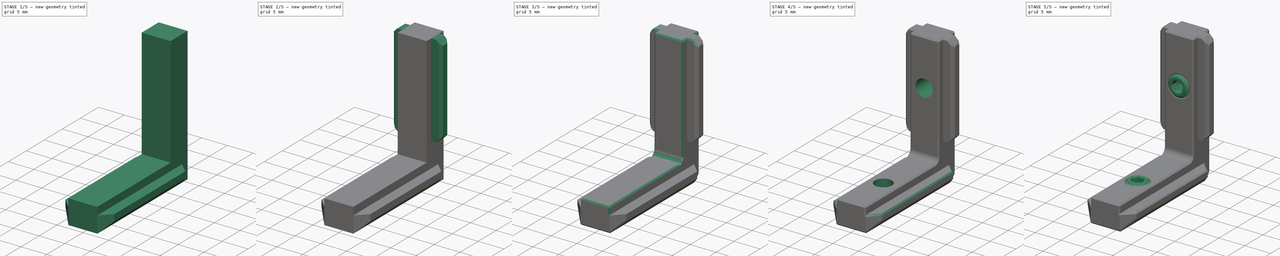
[diagram: build sequence overview — one tinted view per stage of 5, left to right]
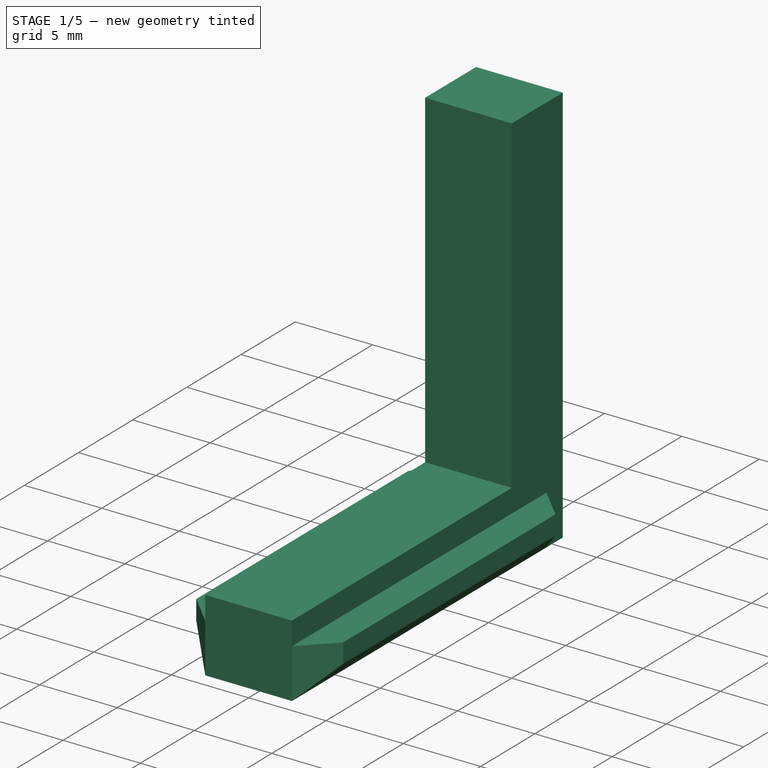
[diagram: stage 1 of 5 — iso view after this stage's code; geometry added in this stage tinted green]
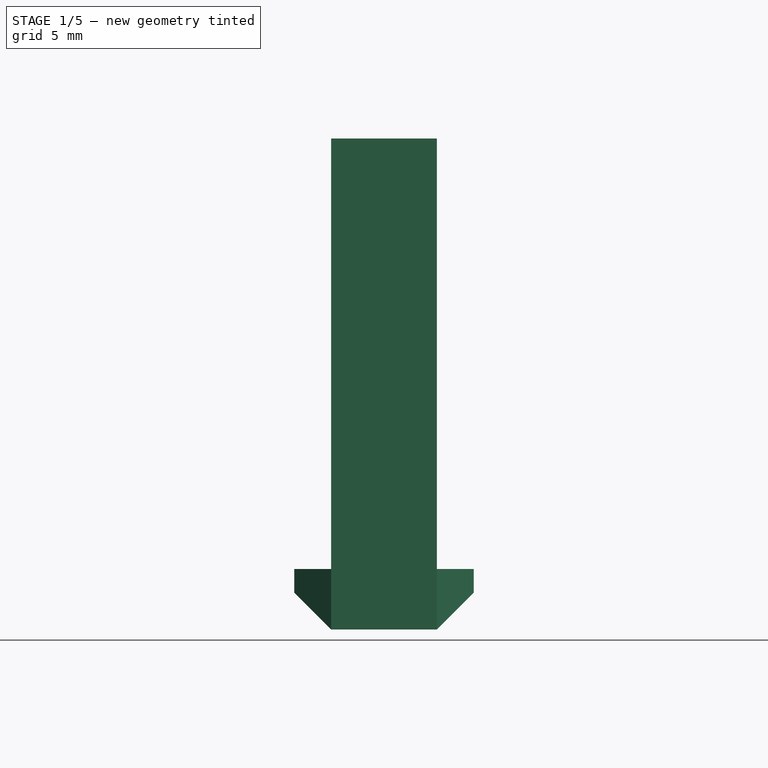
[diagram: stage 1 of 5 — front view after this stage's code; geometry added in this stage tinted green]
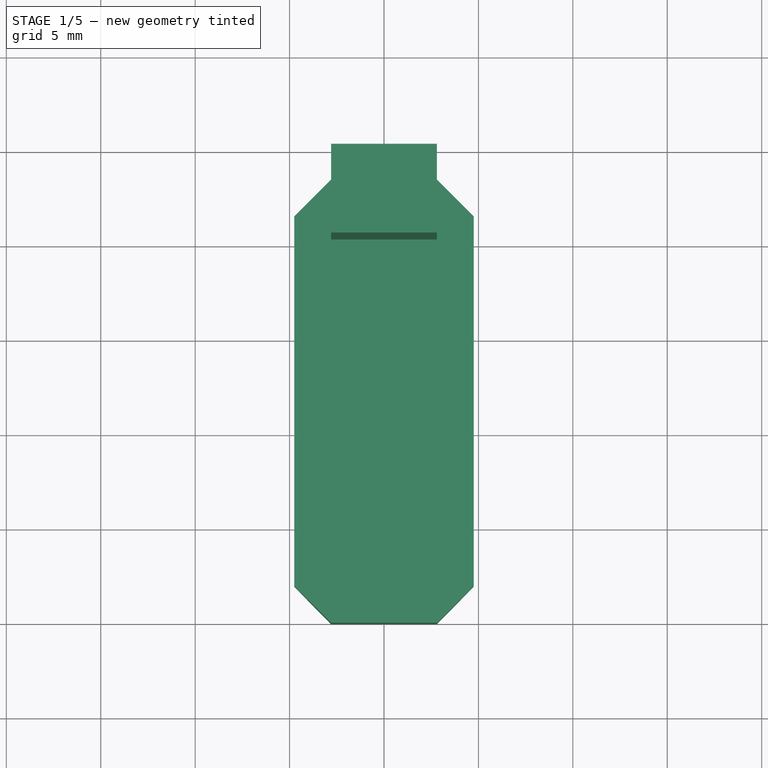
[diagram: stage 1 of 5 — top view after this stage's code; geometry added in this stage tinted green]
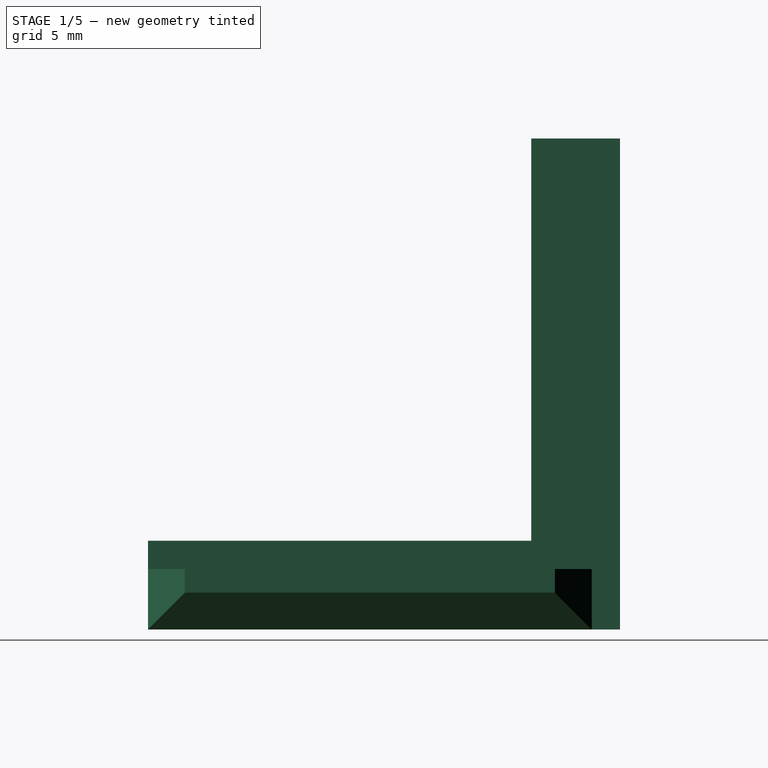
[diagram: stage 1 of 5 — right view after this stage's code; geometry added in this stage tinted green]
FCSTD DOCUMENT  (FreeCAD 0.21R33668 +7 (Git))
Label: 2020 Extrusion Inside Corner Bracket
License: All rights reserved
LicenseURL: http://en.wikipedia.org/wiki/All_rights_reserved
objects: Sketcher::SketchObject×6, PartDesign::Chamfer×6, PartDesign::Pad×3, PartDesign::Hole×2, Part::FeaturePython×2, PartDesign::Pocket×1, PartDesign::Fillet×1, PartDesign::Body×1
note: 35 computed .brp shape members not serialized (recipe doc carries the construction recipe); baked Part::Feature solids carry a one-line shape summary decoded from their .brp

FEATURE [Sketcher::SketchObject] Sketch
  FullyConstrained = true
  MapMode = 5
  Placement = pos=(0,0,0) rot=(1,0,0;1.5708rad)
  Support = -> [XZ_Plane]
  sketch-geometry (10):
    g0: LineSegment StartX=-2.8 StartY=-0.3 StartZ=0 EndX=2.8 EndY=-0.3 EndZ=0
    g1: LineSegment StartX=2.8 StartY=-0.3 StartZ=0 EndX=2.8 EndY=-1.8 EndZ=0
    g2: LineSegment StartX=2.8 StartY=-1.8 StartZ=0 EndX=4.75 EndY=-1.8 EndZ=0
    g3: LineSegment StartX=4.75 StartY=-1.8 StartZ=0 EndX=4.75 EndY=-3.05 EndZ=0
    g4: LineSegment StartX=4.75 StartY=-3.05 StartZ=0 EndX=2.8 EndY=-5 EndZ=0
    g5: LineSegment StartX=2.8 StartY=-5 StartZ=0 EndX=-2.8 EndY=-5 EndZ=0
    g6: LineSegment StartX=-2.8 StartY=-5 StartZ=0 EndX=-4.75 EndY=-3.05 EndZ=0
    g7: LineSegment StartX=-4.75 StartY=-3.05 StartZ=0 EndX=-4.75 EndY=-1.8 EndZ=0
    g8: LineSegment StartX=-4.75 StartY=-1.8 StartZ=0 EndX=-2.8 EndY=-1.8 EndZ=0
    g9: LineSegment StartX=-2.8 StartY=-1.8 StartZ=0 EndX=-2.8 EndY=-0.3 EndZ=0
  constraints (28):
    c: Coincident(g0,g1)
    c: Vertical(g1)
    c: Coincident(g1,g2)
    c: Horizontal(g2)
    c: Coincident(g2,g3)
    c: Coincident(g3,g4)
    c: Coincident(g4,g5)
    c: Coincident(g5,g6)
    c: Coincident(g6,g7)
    c: Vertical(g7)
    c: Coincident(g7,g8)
    c: Horizontal(g8)
    c: Coincident(g8,g9)
    c: Coincident(g9,g0)
    c: Vertical(g9)
    c: Symmetric(g0,g0,g-2)
    c: DistanceX(g0,g0) = 5.6
    c: Equal(g8,g2)
    c: Equal(g1,g9)
    c: Equal(g6,g4)
    c: Equal(g3,g7)
    c: Symmetric(g5,g4,g-2)
    c: DistanceX(g7,g2) = 9.5
    c: DistanceY(g4,g0) = 4.7
    c: Perpendicular(g4,g6)
    c: DistanceY(g1,g-1) = 1.8
    c: DistanceY(g2,g0) = 1.5
    c: Vertical(g8,g5)
FEATURE [PartDesign::Pad] Pad
  Direction = (0,-1,2e-16)
  Length = 25
  Length2 = 10
  Placement = pos=(0,0,0) rot=(1,0,0;1.5708rad)
  Profile = -> Sketch
  ReferenceAxis = -> Sketch [N_Axis]
  Type = 0
FEATURE [Sketcher::SketchObject] Sketch001
  ExternalGeometry = -> [Pad]
  FullyConstrained = true
  MapMode = 5
  Placement = pos=(0,-1e-16,-0.3) rot=(0,0,1;3.14159rad)
  Support = -> [Pad]
  sketch-geometry (4):
    g0: LineSegment StartX=-2.8 StartY=0 StartZ=0 EndX=2.8 EndY=0 EndZ=0
    g1: LineSegment StartX=2.8 StartY=0 StartZ=0 EndX=2.8 EndY=4.7 EndZ=0
    g2: LineSegment StartX=2.8 StartY=4.7 StartZ=0 EndX=-2.8 EndY=4.7 EndZ=0
    g3: LineSegment StartX=-2.8 StartY=4.7 StartZ=0 EndX=-2.8 EndY=0 EndZ=0
  constraints (11):
    c: Coincident(g0,g1)
    c: Coincident(g1,g2)
    c: Coincident(g2,g3)
    c: Coincident(g3,g0)
    c: Horizontal(g0)
    c: Horizontal(g2)
    c: Vertical(g1)
    c: Vertical(g3)
    c: Coincident(g0,g-3)
    c: PointOnObject(g1,g-4)
    c: DistanceY(g3,g3) = 4.7
FEATURE [PartDesign::Pad] Pad001
  BaseFeature = -> Pad
  Direction = (0,2e-16,1)
  Length = 21.3
  Length2 = 10
  Placement = pos=(0,0,0) rot=(1,0,0;1.5708rad)
  Profile = -> Sketch001
  ReferenceAxis = -> Sketch001 [N_Axis]
  Refine = true
  Type = 0
FEATURE [Sketcher::SketchObject] Sketch002
  ExternalGeometry = -> [Pad001]
  FullyConstrained = true
  MapMode = 5
  Placement = pos=(0,-4e-16,-1.8) rot=(0,0,1;3.14159rad)
  Support = -> [Pad001]
  sketch-geometry (14):
    g0: LineSegment StartX=-2.8 StartY=25 StartZ=0 EndX=-4.75 EndY=25 EndZ=0
    g1: LineSegment StartX=-4.75 StartY=25 StartZ=0 EndX=-4.75 EndY=23.05 EndZ=0
    g2: LineSegment StartX=-4.75 StartY=23.05 StartZ=0 EndX=-2.8 EndY=25 EndZ=0
    g3: LineSegment StartX=2.8 StartY=25 StartZ=0 EndX=4.75 EndY=25 EndZ=0
    g4: LineSegment StartX=4.75 StartY=25 StartZ=0 EndX=4.75 EndY=23.05 EndZ=0
    g5: LineSegment StartX=4.75 StartY=23.05 StartZ=0 EndX=2.8 EndY=25 EndZ=0
    g6: LineSegment StartX=2.8 StartY=1.5 StartZ=0 EndX=4.75 EndY=3.45 EndZ=0
    g7: LineSegment StartX=4.75 StartY=3.45 StartZ=0 EndX=4.75 EndY=0 EndZ=0
    g8: LineSegment StartX=4.75 StartY=0 StartZ=0 EndX=2.8 EndY=0 EndZ=0
    g9: LineSegment StartX=2.8 StartY=0 StartZ=0 EndX=2.8 EndY=1.5 EndZ=0
    g10: LineSegment StartX=-2.8 StartY=1.5 StartZ=0 EndX=-4.75 EndY=3.45 EndZ=0
    g11: LineSegment StartX=-4.75 StartY=3.45 StartZ=0 EndX=-4.75 EndY=0 EndZ=0
    g12: LineSegment StartX=-4.75 StartY=0 StartZ=0 EndX=-2.8 EndY=0 EndZ=0
    g13: LineSegment StartX=-2.8 StartY=0 StartZ=0 EndX=-2.8 EndY=1.5 EndZ=0
  constraints (34):
    c: Coincident(g-6,g0)
    c: Coincident(g0,g1)
    c: Coincident(g1,g2)
    c: Coincident(g2,g0)
    c: Coincident(g-5,g3)
    c: Coincident(g3,g4)
    c: PointOnObject(g4,g-4)
    c: Coincident(g4,g5)
    c: Coincident(g5,g3)
    c: PointOnObject(g1,g-3)
    c: Coincident(g0,g-3)
    c: Coincident(g3,g-4)
    c: Equal(g3,g4)
    c: Equal(g4,g1)
    c: PointOnObject(g6,g-5)
    c: PointOnObject(g6,g-4)
    c: Coincident(g6,g7)
    c: Coincident(g7,g8)
    c: Coincident(g8,g9)
    c: Coincident(g9,g6)
    c: PointOnObject(g10,g-6)
    c: PointOnObject(g10,g-3)
    c: Coincident(g10,g11)
    c: Coincident(g11,g12)
    c: Coincident(g12,g13)
    c: Coincident(g13,g10)
    c: Coincident(g12,g-6)
    c: Coincident(g-3,g11)
    c: Coincident(g7,g-4)
    c: Coincident(g8,g-5)
    c: Equal(g9,g13)
    c: Equal(g11,g7)
    c: Equal(g10,g5)
    c: DistanceY(g7,g6) = 1.5
FEATURE [PartDesign::Pocket] Pocket
  BaseFeature = -> Pad001
  Direction = (0,-2e-16,-1)
  Length = 5
  Length2 = 5
  Placement = pos=(0,0,0) rot=(1,0,0;1.5708rad)
  Profile = -> Sketch002
  ReferenceAxis = -> Sketch002 [N_Axis]
  Refine = true
  Type = 1
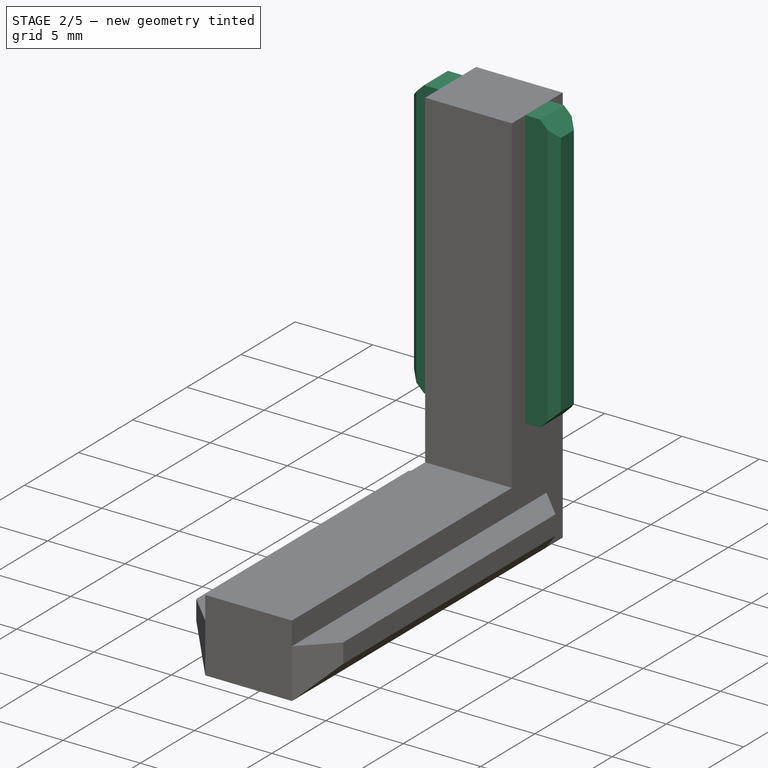
[diagram: stage 2 of 5 — iso view after this stage's code; geometry added in this stage tinted green]
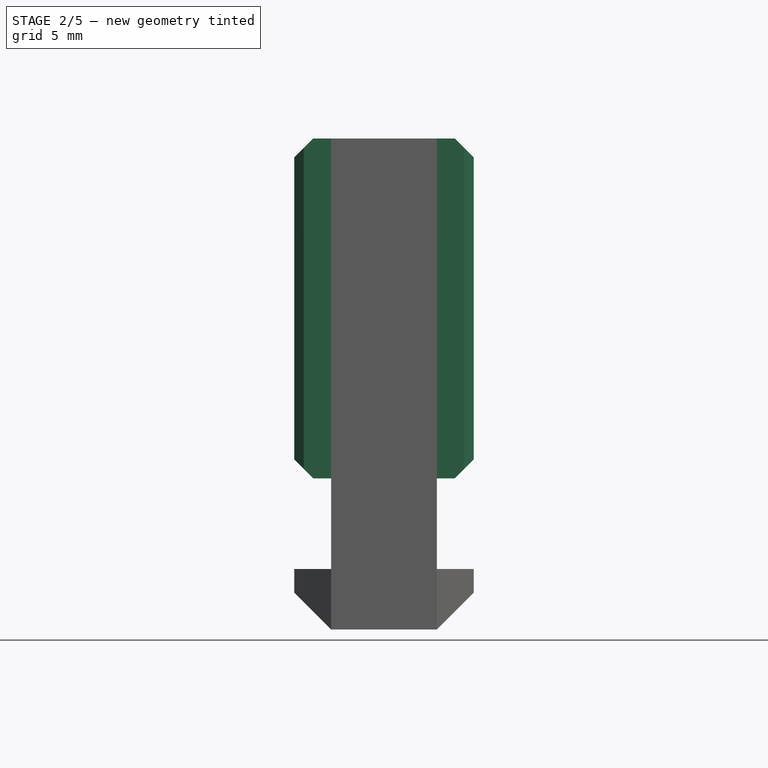
[diagram: stage 2 of 5 — front view after this stage's code; geometry added in this stage tinted green]
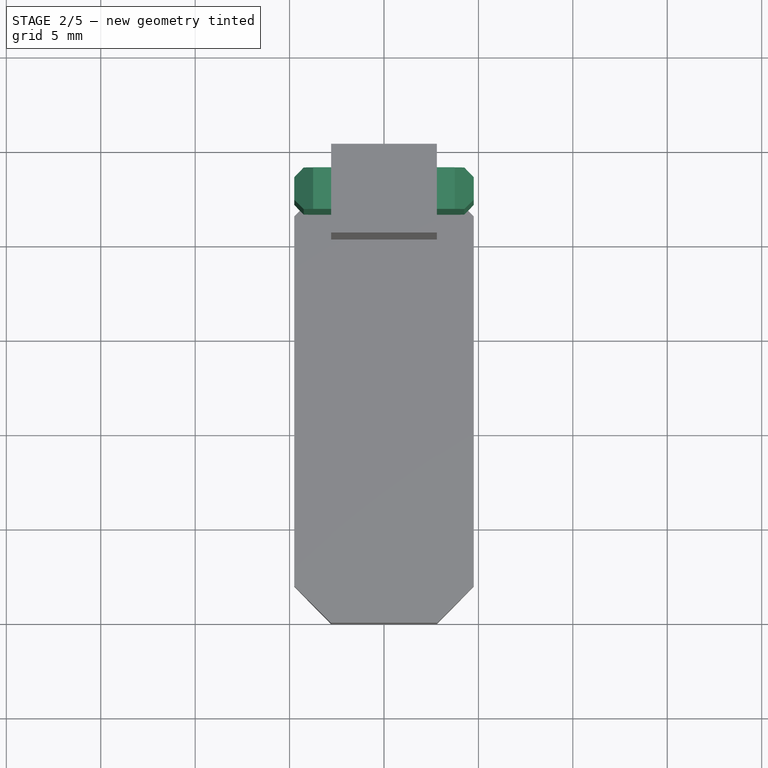
[diagram: stage 2 of 5 — top view after this stage's code; geometry added in this stage tinted green]
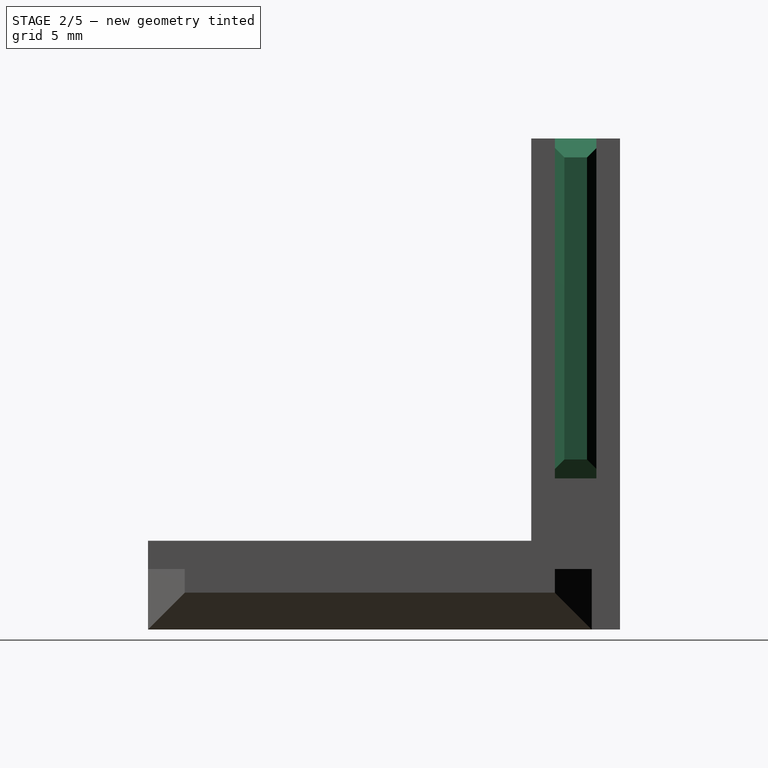
[diagram: stage 2 of 5 — right view after this stage's code; geometry added in this stage tinted green]
FEATURE [Sketcher::SketchObject] Sketch003
  ExternalGeometry = -> [Pocket]
  FullyConstrained = true
  MapMode = 5
  Placement = pos=(0,4.7e-15,21) rot=(0,0,1;3.14159rad)
  Support = -> [Pocket]
  sketch-geometry (6):
    g0: LineSegment StartX=-4.75 StartY=3.45 StartZ=0 EndX=4.75 EndY=3.45 EndZ=0
    g1: LineSegment StartX=4.75 StartY=3.45 StartZ=0 EndX=4.75 EndY=1.25 EndZ=0
    g2: LineSegment StartX=4.75 StartY=1.25 StartZ=0 EndX=-4.75 EndY=1.25 EndZ=0
    g3: LineSegment StartX=-4.75 StartY=1.25 StartZ=0 EndX=-4.75 EndY=3.45 EndZ=0
    g4: LineSegment StartX=2.8 StartY=4.7 StartZ=0 EndX=4.75 EndY=3.45 EndZ=0
    g5: LineSegment StartX=2.8 StartY=0 StartZ=0 EndX=4.75 EndY=1.25 EndZ=0
  constraints (16):
    c: Coincident(g0,g1)
    c: Coincident(g1,g2)
    c: Coincident(g2,g3)
    c: Coincident(g3,g0)
    c: Horizontal(g0)
    c: Horizontal(g2)
    c: Vertical(g1)
    c: Vertical(g3)
    c: PointOnObject(g0,g-4)
    c: PointOnObject(g0,g-3)
    c: Coincident(g-5,g4)
    c: Coincident(g4,g0)
    c: Coincident(g-6,g5)
    c: Coincident(g5,g1)
    c: Equal(g5,g4)
    c: DistanceY(g4,g4) = 1.25
FEATURE [PartDesign::Pad] Pad002
  AlongSketchNormal = false
  BaseFeature = -> Pocket
  Direction = (0,2e-16,1)
  Length = 18
  Length2 = 10
  Placement = pos=(0,0,0) rot=(1,0,0;1.5708rad)
  Profile = -> Sketch003
  ReferenceAxis = -> Sketch003 [N_Axis]
  Refine = true
  Reversed = true
  Type = 0
FEATURE [PartDesign::Chamfer] Chamfer
  Angle = 45
  Base = -> Pad002 [Edge66,Edge62,Edge53,Edge34]
  BaseFeature = -> Pad002
  ChamferType = 0
  FlipDirection = false
  Placement = pos=(0,0,0) rot=(1,0,0;1.5708rad)
  Size = 1
  Size2 = 1
  SupportTransform = false
  UseAllEdges = false
FEATURE [PartDesign::Chamfer] Chamfer001
  Angle = 45
  Base = -> Chamfer [Edge52,Edge47,Edge4,Edge29]
  BaseFeature = -> Chamfer
  ChamferType = 0
  FlipDirection = false
  Placement = pos=(0,0,0) rot=(1,0,0;1.5708rad)
  Size = 0.5
  Size2 = 1
  SupportTransform = false
  UseAllEdges = false
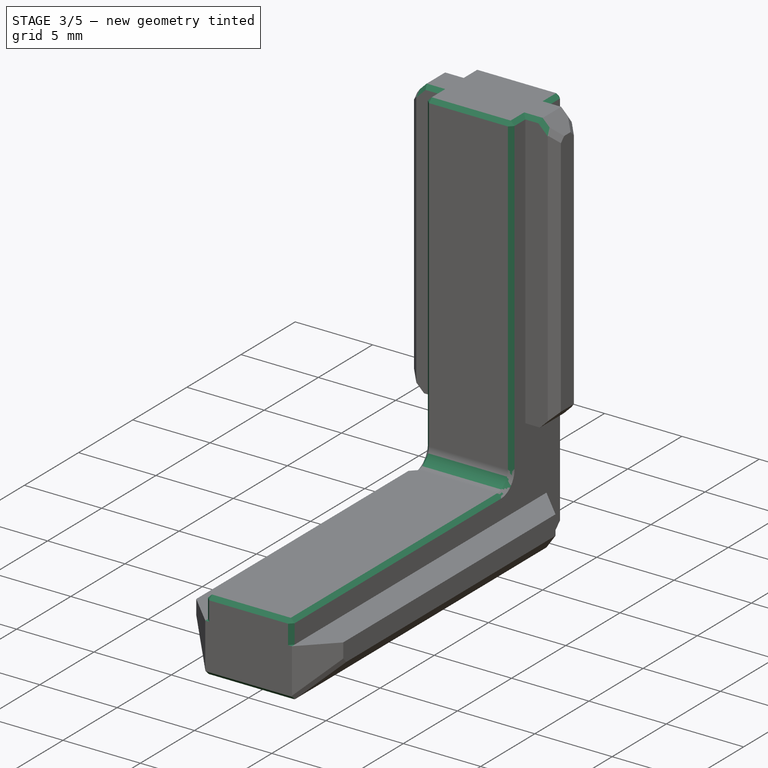
[diagram: stage 3 of 5 — iso view after this stage's code; geometry added in this stage tinted green]
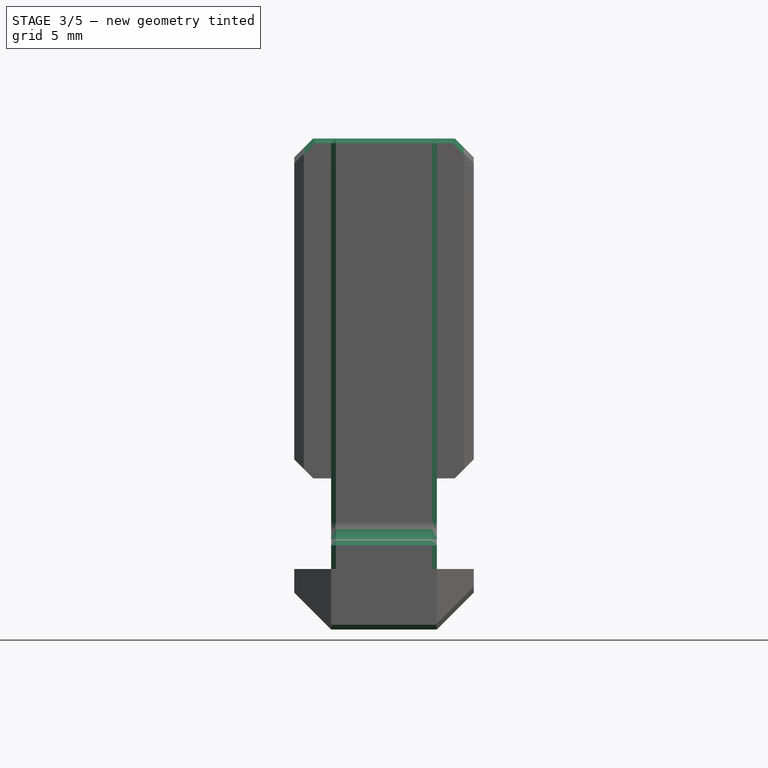
[diagram: stage 3 of 5 — front view after this stage's code; geometry added in this stage tinted green]
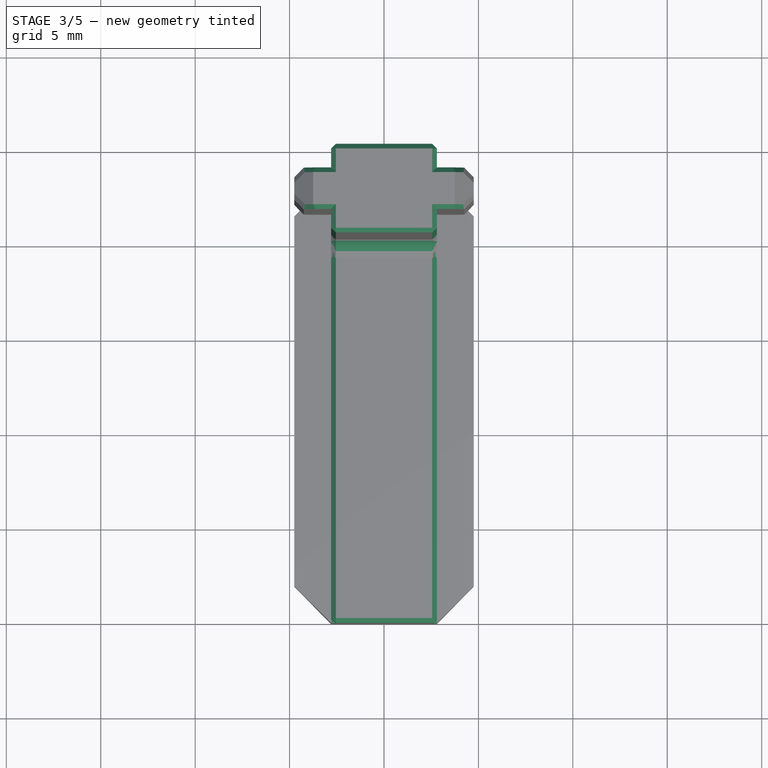
[diagram: stage 3 of 5 — top view after this stage's code; geometry added in this stage tinted green]
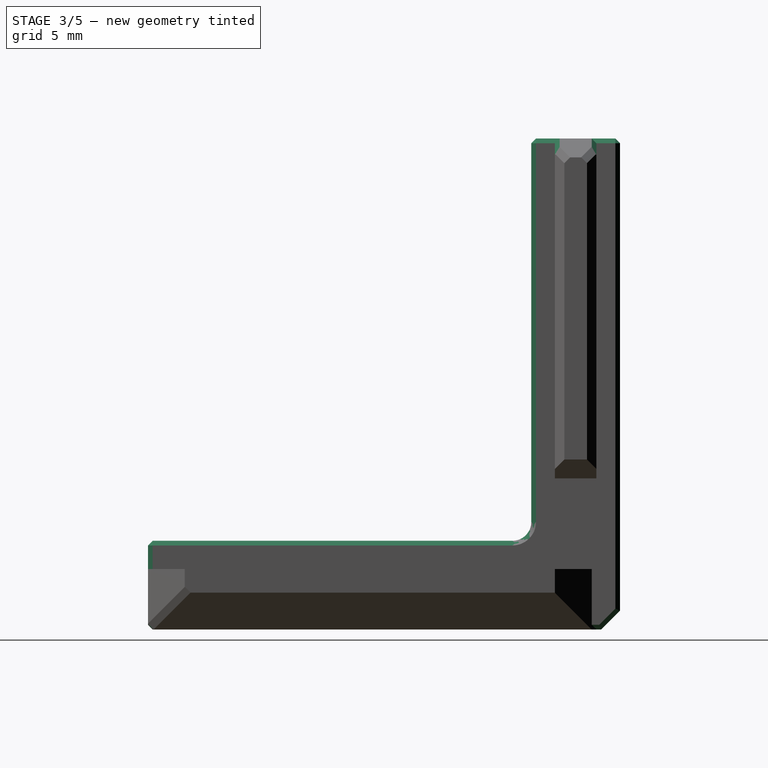
[diagram: stage 3 of 5 — right view after this stage's code; geometry added in this stage tinted green]
FEATURE [PartDesign::Fillet] Fillet
  Base = -> Chamfer001 [Edge41]
  BaseFeature = -> Chamfer001
  Placement = pos=(0,0,0) rot=(1,0,0;1.5708rad)
  Radius = 1
  SupportTransform = false
  UseAllEdges = false
FEATURE [PartDesign::Chamfer] Chamfer002
  Angle = 45
  Base = -> Fillet [Edge51]
  BaseFeature = -> Fillet
  ChamferType = 0
  FlipDirection = false
  Placement = pos=(0,0,0) rot=(1,0,0;1.5708rad)
  Size = 1
  Size2 = 1
  SupportTransform = false
  UseAllEdges = false
FEATURE [PartDesign::Chamfer] Chamfer003
  Angle = 45
  Base = -> Chamfer002 [Edge41,Edge32,Edge14,Edge29,Edge52,Edge69,Edge67,Edge42,Edge31,Edge26,Edge35,Edge37,Edge34,Edge33,Edge13,Edge4,Edge55,Edge70,Edge74,Edge77,Edge76,Edge25,Edge7,Edge56,Edge18,Edge38,Edge65,Edge21,Edge17,Edge6,Edge2,Edge1]
  BaseFeature = -> Chamfer002
  ChamferType = 0
  FlipDirection = false
  Placement = pos=(0,0,0) rot=(1,0,0;1.5708rad)
  Size = 0.25
  Size2 = 1
  SupportTransform = false
  UseAllEdges = false
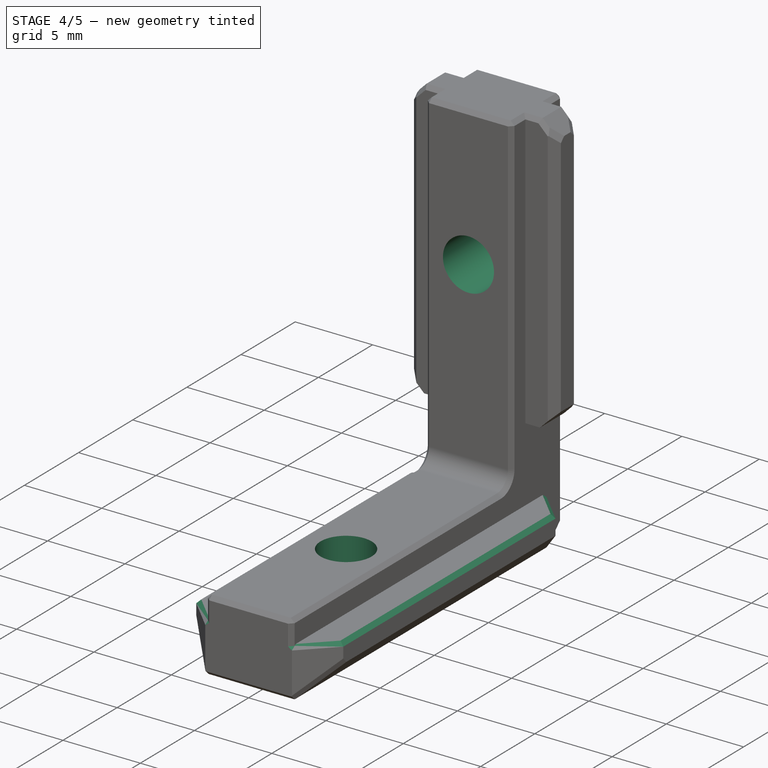
[diagram: stage 4 of 5 — iso view after this stage's code; geometry added in this stage tinted green]
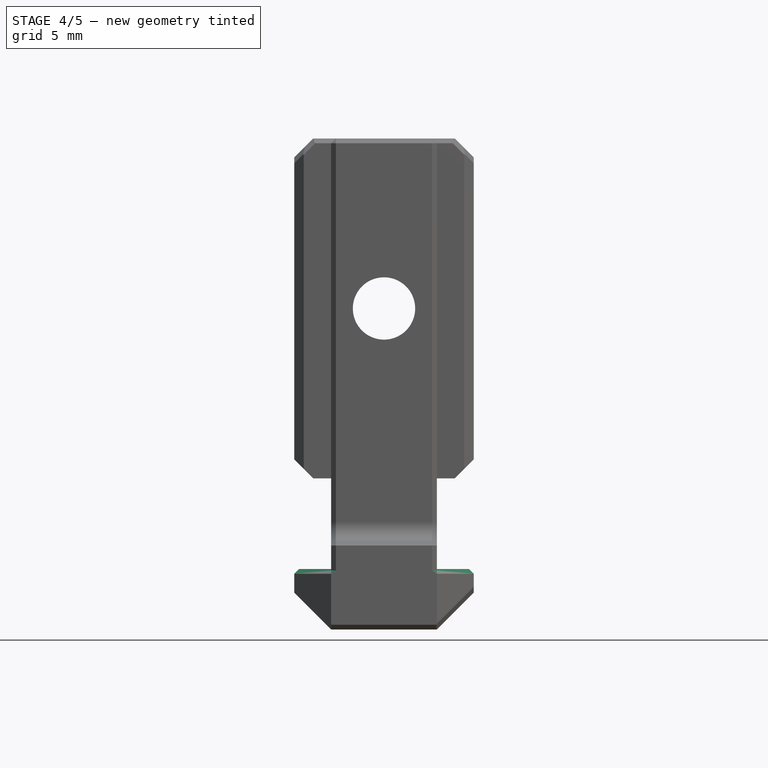
[diagram: stage 4 of 5 — front view after this stage's code; geometry added in this stage tinted green]
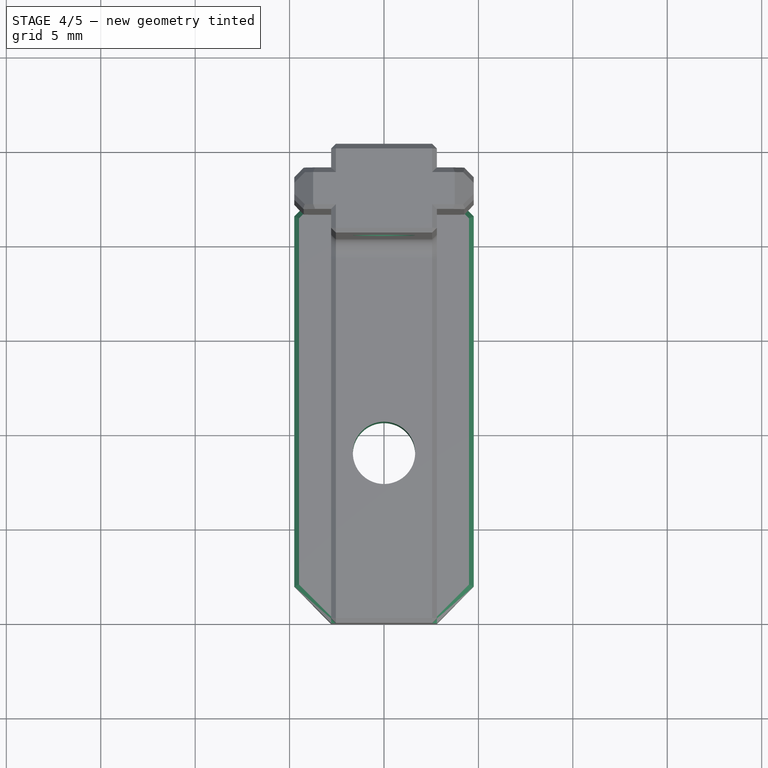
[diagram: stage 4 of 5 — top view after this stage's code; geometry added in this stage tinted green]
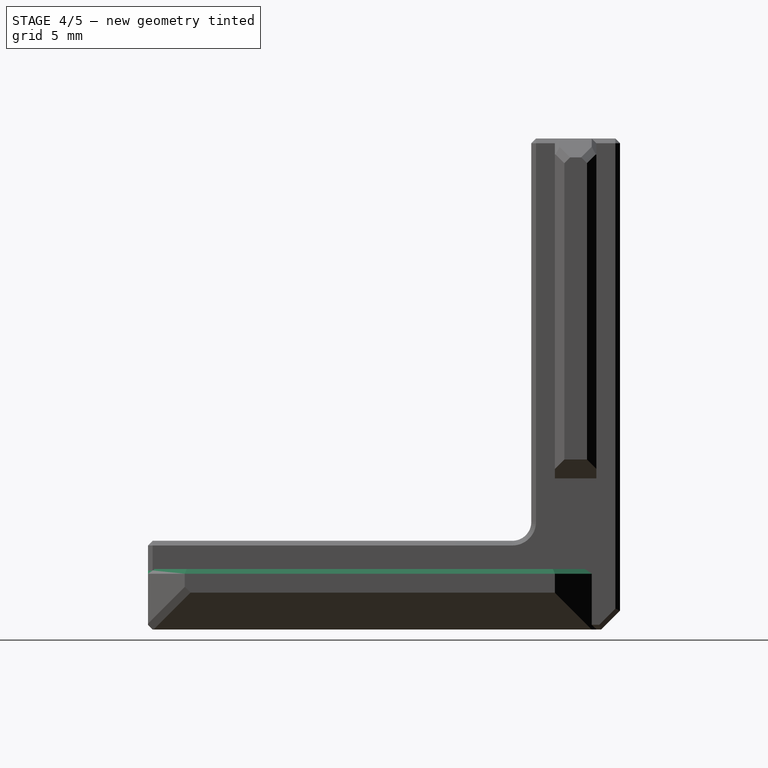
[diagram: stage 4 of 5 — right view after this stage's code; geometry added in this stage tinted green]
FEATURE [PartDesign::Chamfer] Chamfer004
  Angle = 45
  Base = -> Chamfer003 [Edge134,Edge120,Edge130,Edge25,Edge16,Edge24]
  BaseFeature = -> Chamfer003
  ChamferType = 0
  FlipDirection = false
  Placement = pos=(0,0,0) rot=(1,0,0;1.5708rad)
  Size = 0.25
  Size2 = 1
  SupportTransform = false
  UseAllEdges = false
FEATURE [Sketcher::SketchObject] Sketch004
  ExternalGeometry = -> [Chamfer004]
  FullyConstrained = true
  MapMode = 5
  Placement = pos=(0,-4.7,1e-15) rot=(1,0,0;1.5708rad)
  Support = -> [Chamfer004]
  sketch-geometry (1):
    g0: Circle CenterX=0 CenterY=12 CenterZ=0 NormalX=0 NormalY=0 NormalZ=1 AngleXU=0 Radius=2.5
  constraints (3):
    c: PointOnObject(g0,g-2)
    c: DistanceY(g0,g-3) = 9
    c: Diameter(g0) = 5
FEATURE [PartDesign::Hole] Hole
  BaseFeature = -> Chamfer004
  CustomThreadClearance = 0
  Depth = 25
  DepthType = 0
  Diameter = 3.3
  DrillForDepth = false
  DrillPoint = 1
  DrillPointAngle = 118
  HoleCutCountersinkAngle = 90
  HoleCutCustomValues = false
  HoleCutDepth = 0
  HoleCutDiameter = 6.1
  HoleCutType = 0
  ModelThread = false
  Placement = pos=(0,0,0) rot=(1,0,0;1.5708rad)
  Profile = -> Sketch004
  Tapered = false
  TaperedAngle = 90
  ThreadClass = 0
  ThreadDepth = 25
  ThreadDepthType = 0
  ThreadDirection = 0
  ThreadFit = 0
  ThreadSize = 11
  ThreadType = 1
  Threaded = true
  UseCustomThreadClearance = false
FEATURE [Sketcher::SketchObject] Sketch005
  ExternalGeometry = -> [Hole]
  FullyConstrained = false
  MapMode = 5
  Placement = pos=(0,-1e-16,-0.3) rot=(0,0,1;3.14159rad)
  Support = -> [Hole]
  sketch-geometry (1):
    g0: Circle CenterX=0 CenterY=16 CenterZ=0 NormalX=0 NormalY=0 NormalZ=1 AngleXU=0 Radius=1.97774
  constraints (2):
    c: PointOnObject(g0,g-2)
    c: DistanceY(g0,g-3) = 9
FEATURE [PartDesign::Hole] Hole001
  BaseFeature = -> Hole
  CustomThreadClearance = 0
  Depth = 25
  DepthType = 0
  Diameter = 3.3
  DrillForDepth = false
  DrillPoint = 1
  DrillPointAngle = 118
  HoleCutCountersinkAngle = 90
  HoleCutCustomValues = false
  HoleCutDepth = 0
  HoleCutDiameter = 6.1
  HoleCutType = 0
  ModelThread = false
  Placement = pos=(0,0,0) rot=(1,0,0;1.5708rad)
  Profile = -> Sketch005
  Tapered = false
  TaperedAngle = 90
  ThreadClass = 0
  ThreadDepth = 25
  ThreadDepthType = 0
  ThreadDirection = 0
  ThreadFit = 0
  ThreadSize = 11
  ThreadType = 1
  Threaded = true
  UseCustomThreadClearance = false
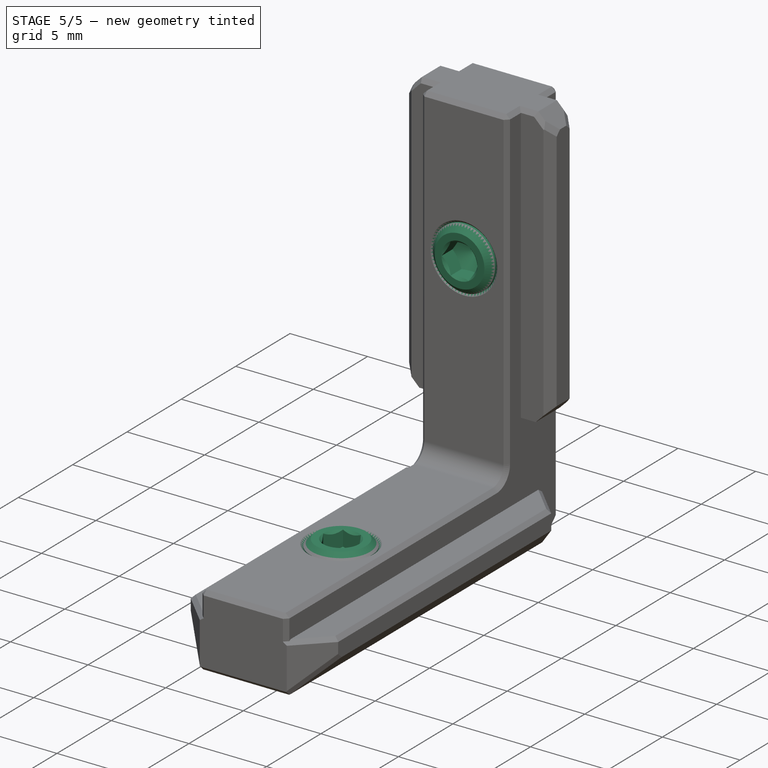
[diagram: stage 5 of 5 — iso view after this stage's code; geometry added in this stage tinted green]
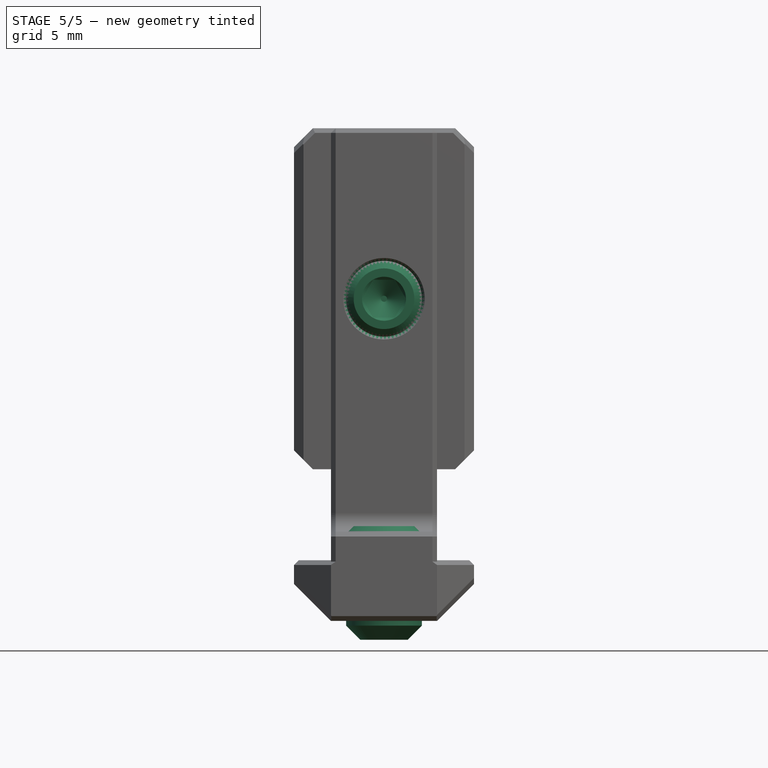
[diagram: stage 5 of 5 — front view after this stage's code; geometry added in this stage tinted green]
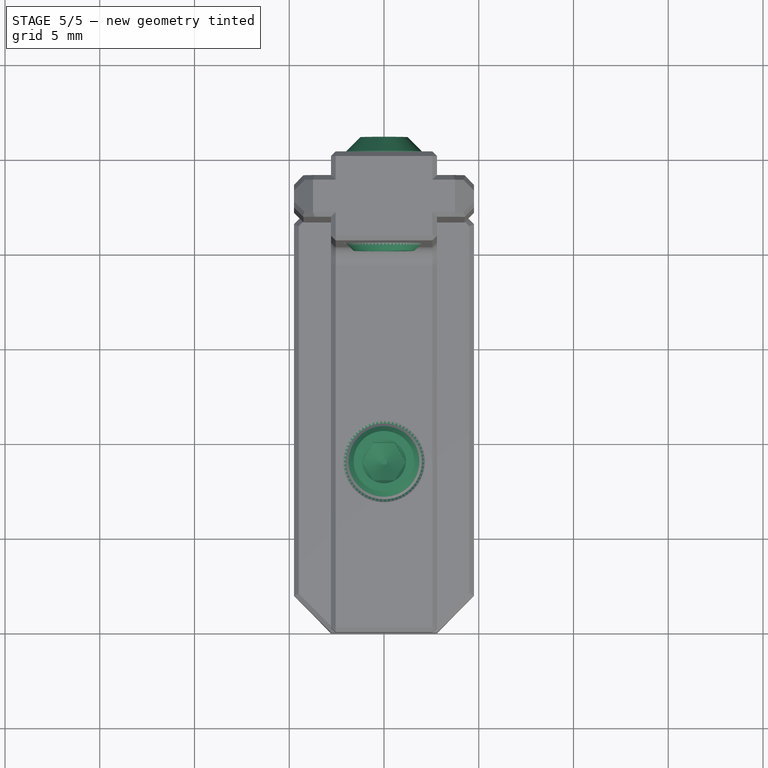
[diagram: stage 5 of 5 — top view after this stage's code; geometry added in this stage tinted green]
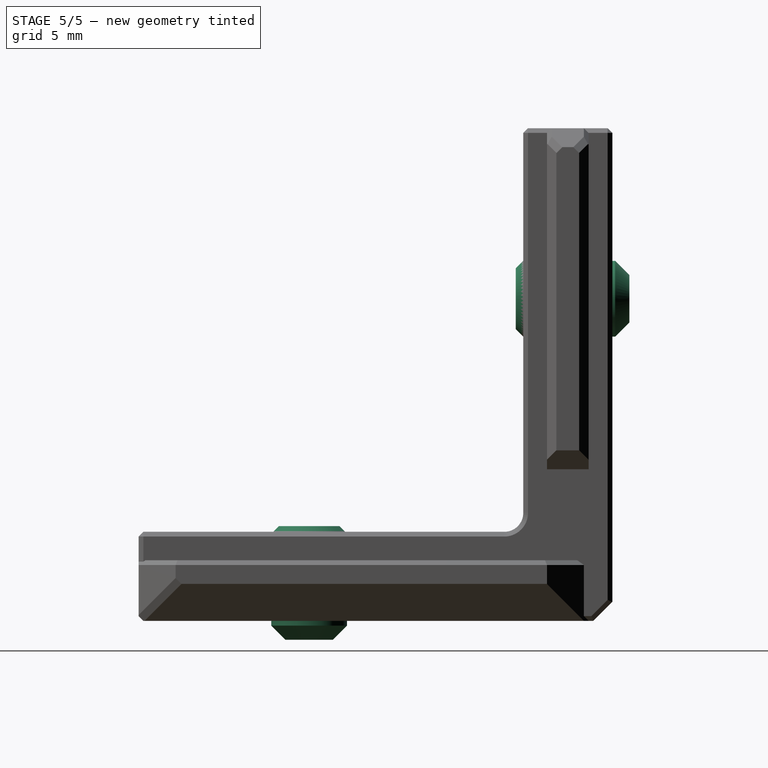
[diagram: stage 5 of 5 — right view after this stage's code; geometry added in this stage tinted green]
FEATURE [PartDesign::Chamfer] Chamfer005
  Angle = 45
  Base = -> Hole001 [Face47,Face55]
  BaseFeature = -> Hole001
  ChamferType = 0
  FlipDirection = false
  Placement = pos=(0,0,0) rot=(1,0,0;1.5708rad)
  Size = 0.5
  Size2 = 1
  SupportTransform = false
  UseAllEdges = false
FEATURE [PartDesign::Body] Body
  Group = -> [Sketch,Pad,Sketch001,Pad001,Sketch002,Pocket,Sketch003,Pad002,Chamfer,Chamfer001,Fillet,Chamfer002,Chamfer003,Chamfer004,Sketch004,Hole,Sketch005,Hole001,Chamfer005]
  Origin = -> Origin
  Tip = -> Chamfer005
FEATURE [Part::FeaturePython] Screw  label="M4x6-Screw"  # Fasteners workbench fastener (typed FeaturePython)
  Placement = pos=(0,-16,0) rot=(0,0,1;0rad)
  diameter = 7
  invert = false
  leftHanded = false
  length = 2
  lengthCustom = 6
  matchOuter = false
  offset = 0
  thread = false
  type = 41
FEATURE [Part::FeaturePython] Screw001  label="M4x6-Screw001"  # Fasteners workbench fastener (typed FeaturePython)
  Placement = pos=(3.6e-15,-5.1,12) rot=(1,0,0;1.5708rad)
  diameter = 7
  invert = false
  leftHanded = false
  length = 2
  lengthCustom = 6
  matchOuter = false
  offset = 0
  thread = false
  type = 41
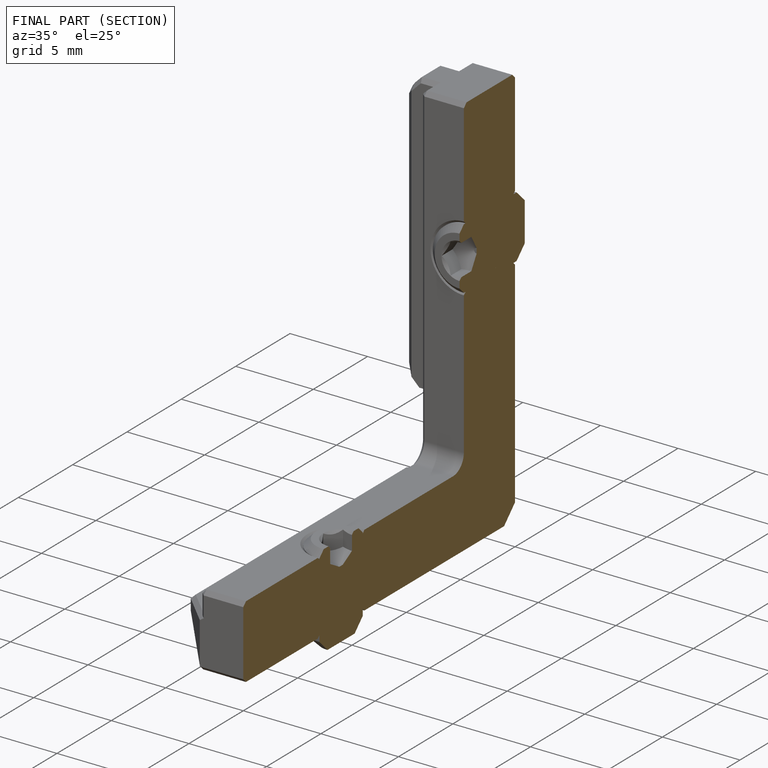
[diagram: finished part — half-section view (interior)]
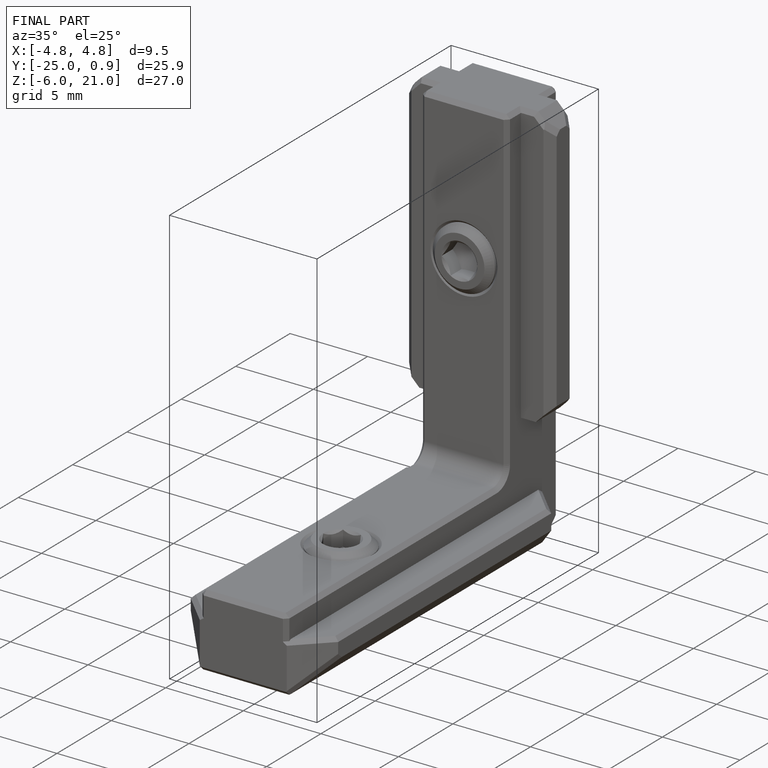
[diagram: finished part — iso view with bounding-box wireframe]
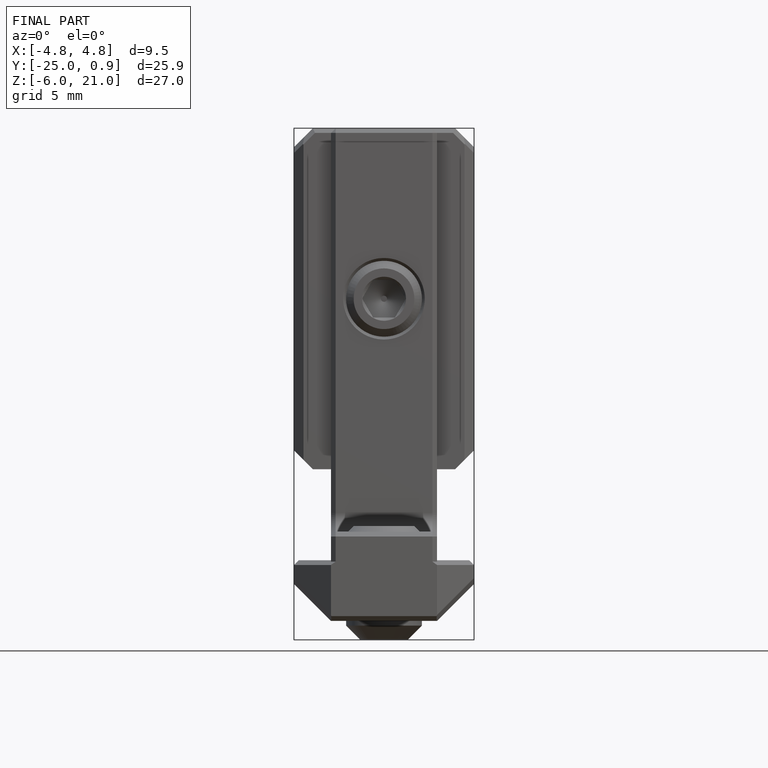
[diagram: finished part — front view with bounding-box wireframe]
